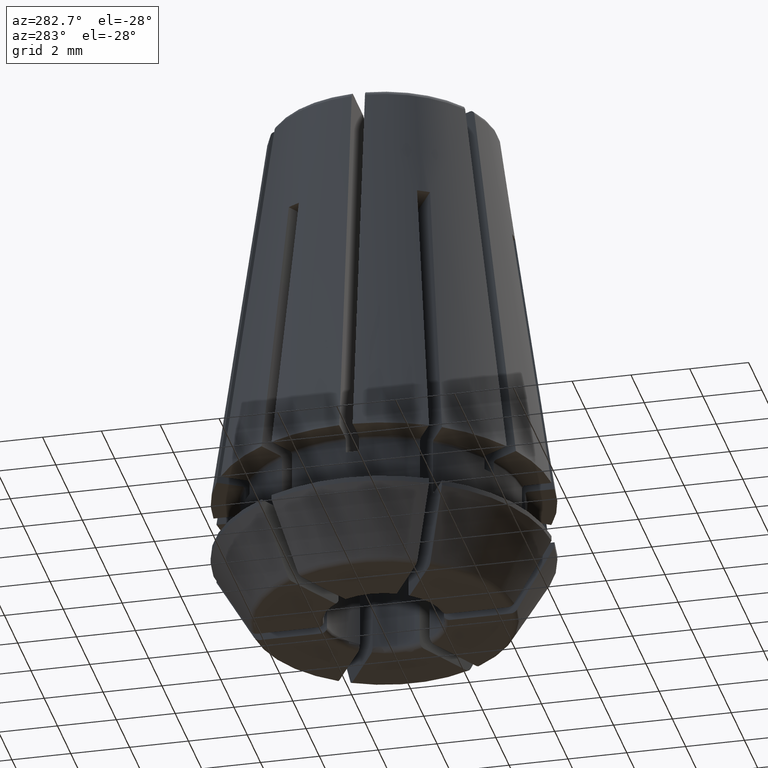
[diagram: clean part render]
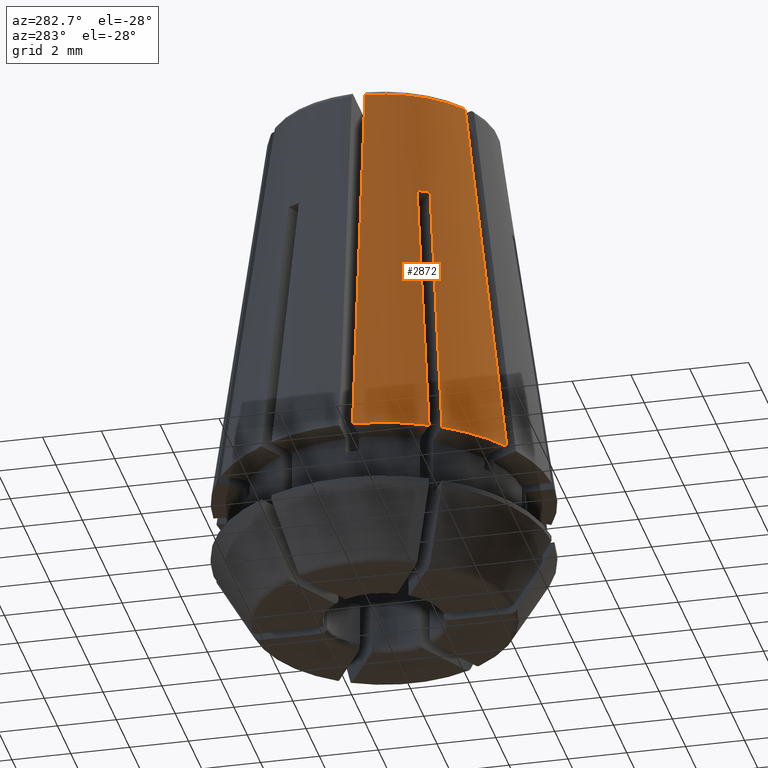
[diagram: same view with one face highlighted and labeled with its STEP entity id]
A machine part, auxiliary view. The second image highlights one B-rep face of the part: STEP entity #2872.
In plain terms, the highlighted conical surface has half-angle 8 deg.
Its self-contained STEP definition (entity closure, byte-faithful):
#60=CONICAL_SURFACE('',#3149,5.71797993230411,0.139626340159546);
#526=CIRCLE('',#3049,4.41486207032729);
#578=CIRCLE('',#3150,3.87689499770279);
#579=CIRCLE('',#3151,5.75);
#580=CIRCLE('',#3152,5.75);
#1043=ORIENTED_EDGE('',*,*,#1657,.F.);
#1044=ORIENTED_EDGE('',*,*,#1852,.F.);
#1045=ORIENTED_EDGE('',*,*,#1678,.T.);
#1046=ORIENTED_EDGE('',*,*,#1853,.T.);
#1047=ORIENTED_EDGE('',*,*,#1854,.F.);
#1048=ORIENTED_EDGE('',*,*,#1695,.T.);
#1049=ORIENTED_EDGE('',*,*,#1855,.T.);
#1050=ORIENTED_EDGE('',*,*,#1856,.T.);
#1657=EDGE_CURVE('',#2102,#2103,#2335,.T.);
#1678=EDGE_CURVE('',#2119,#2118,#2342,.T.);
#1695=EDGE_CURVE('',#2128,#2131,#526,.T.);
#1852=EDGE_CURVE('',#2119,#2102,#578,.T.);
#1853=EDGE_CURVE('',#2118,#2233,#579,.T.);
#1854=EDGE_CURVE('',#2128,#2233,#2392,.T.);
#1855=EDGE_CURVE('',#2131,#2234,#2393,.T.);
#1856=EDGE_CURVE('',#2234,#2103,#580,.T.);
#2102=VERTEX_POINT('',#4459);
#2103=VERTEX_POINT('',#4467);
#2118=VERTEX_POINT('',#4542);
#2119=VERTEX_POINT('',#4553);
#2128=VERTEX_POINT('',#4588);
#2131=VERTEX_POINT('',#4594);
#2233=VERTEX_POINT('',#5084);
#2234=VERTEX_POINT('',#5099);
#2335=B_SPLINE_CURVE_WITH_KNOTS('',3,(#4460,#4461,#4462,#4463,#4464,#4465,
#4466),.UNSPECIFIED.,.F.,.F.,(4,3,4),(2.01972124516081E-7,0.00680645793045885,
0.0134593135604364),.UNSPECIFIED.);
#2342=B_SPLINE_CURVE_WITH_KNOTS('',3,(#4543,#4544,#4545,#4546,#4547,#4548,
#4549,#4550,#4551,#4552),.UNSPECIFIED.,.F.,.F.,(4,3,3,4),(0.00551330522870601,
0.00722464384773604,0.0144492876787554,0.0189724168091454),
 .UNSPECIFIED.);
#2392=B_SPLINE_CURVE_WITH_KNOTS('',3,(#5085,#5086,#5087,#5088,#5089,#5090,
#5091),.UNSPECIFIED.,.F.,.F.,(4,3,4),(2.01970607867407E-7,0.00775094489359802,
0.00959374956587994),.UNSPECIFIED.);
#2393=B_SPLINE_CURVE_WITH_KNOTS('',3,(#5092,#5093,#5094,#5095,#5096,#5097,
#5098),.UNSPECIFIED.,.F.,.F.,(4,3,4),(2.01970607867354E-7,0.00775094489359802,
0.00959374956587994),.UNSPECIFIED.);
#2514=EDGE_LOOP('',(#1043,#1044,#1045,#1046,#1047,#1048,#1049,#1050));
#2672=FACE_BOUND('',#2514,.T.);
#2872=ADVANCED_FACE('',(#2672),#60,.T.);
#3049=AXIS2_PLACEMENT_3D('',#4595,#3508,#3509);
#3149=AXIS2_PLACEMENT_3D('',#5081,#3767,#3768);
#3150=AXIS2_PLACEMENT_3D('',#5082,#3769,#3770);
#3151=AXIS2_PLACEMENT_3D('',#5083,#3771,#3772);
#3152=AXIS2_PLACEMENT_3D('',#5100,#3773,#3774);
#3508=DIRECTION('',(0.,0.,1.));
#3509=DIRECTION('',(1.,0.,0.));
#3767=DIRECTION('',(0.,0.,-1.));
#3768=DIRECTION('',(-1.,0.,0.));
#3769=DIRECTION('',(0.,0.,1.));
#3770=DIRECTION('',(1.,0.,0.));
#3771=DIRECTION('',(0.,0.,1.));
#3772=DIRECTION('',(1.,0.,0.));
#3773=DIRECTION('',(0.,0.,1.));
#3774=DIRECTION('',(1.,0.,0.));
#4459=CARTESIAN_POINT('',(-2.13003592859738,-3.23933045027784,13.327834620192));
#4460=CARTESIAN_POINT('',(-2.13003592859739,-3.23933045027783,13.327834620192));
#4461=CARTESIAN_POINT('',(-2.28817192716575,-3.51323003430388,11.0812355018997));
#4462=CARTESIAN_POINT('',(-2.44624638924086,-3.78702303399709,8.83461905702039));
#4463=CARTESIAN_POINT('',(-2.60428967405201,-4.06076203308506,6.58799384239534));
#4464=CARTESIAN_POINT('',(-2.75877095773793,-4.32833146524755,4.39200337351099));
#4465=CARTESIAN_POINT('',(-2.91322137466781,-4.5958474346203,2.19600421884522));
#4466=CARTESIAN_POINT('',(-3.0676537856782,-4.86333221682564,1.97074145035449E-15));
#4467=CARTESIAN_POINT('',(-3.0676537856782,-4.86333221682564,-1.46367089694782E-16));
#4542=CARTESIAN_POINT('',(-5.7455961396534,-0.225,3.70477174392886E-17));
#4543=CARTESIAN_POINT('',(-3.87036042549227,-0.224999999999997,13.3278346201885));
#4544=CARTESIAN_POINT('',(-3.94988263079366,-0.224999999999997,12.7629584442003));
#4545=CARTESIAN_POINT('',(-4.02939676888761,-0.225,12.1980811324853));
#4546=CARTESIAN_POINT('',(-4.1089041676004,-0.225,11.6332028722512));
#4547=CARTESIAN_POINT('',(-4.44455523678051,-0.225,9.24849408949913));
#4548=CARTESIAN_POINT('',(-4.78009040912963,-0.225,6.86376899360275));
#4549=CARTESIAN_POINT('',(-5.11556685150051,-0.225,4.47903563840539));
#4550=CARTESIAN_POINT('',(-5.32559841903568,-0.225,2.98602682620454));
#4551=CARTESIAN_POINT('',(-5.53560579087452,-0.224999999999998,1.49301461013963));
#4552=CARTESIAN_POINT('',(-5.74559613965339,-0.224999999999998,-1.52370370580411E-15));
#4553=CARTESIAN_POINT('',(-3.87036042549202,-0.224999999999997,13.3278346201903));
#4588=CARTESIAN_POINT('',(-3.93091414398843,-2.00970671805771,9.5));
#4594=CARTESIAN_POINT('',(-3.70591414398843,-2.3994181497607,9.5));
#4595=CARTESIAN_POINT('',(0.,0.,9.5));
#5081=CARTESIAN_POINT('',(0.,0.,0.227834620192012));
#5082=CARTESIAN_POINT('',(0.,0.,13.327834620192));
#5083=CARTESIAN_POINT('',(0.,0.,0.));
#5084=CARTESIAN_POINT('',(-5.08833221682564,-2.67794235397521,0.));
#5085=CARTESIAN_POINT('',(-3.93091414398842,-2.0097067180577,9.5));
#5086=CARTESIAN_POINT('',(-4.24270387143507,-2.18971860112959,6.94162677884327));
#5087=CARTESIAN_POINT('',(-4.55440010231292,-2.3696765039323,4.38323836467077));
#5088=CARTESIAN_POINT('',(-4.86604894283689,-2.54960704590145,1.82484225554558));
#5089=CARTESIAN_POINT('',(-4.94014609008558,-2.59238705381166,1.21656194588805));
#5090=CARTESIAN_POINT('',(-5.0142403931291,-2.63516541961926,0.608281174271137));
#5091=CARTESIAN_POINT('',(-5.08833221682564,-2.67794235397521,-8.77485236100468E-16));
#5092=CARTESIAN_POINT('',(-3.70591414398842,-2.3994181497607,9.5));
#5093=CARTESIAN_POINT('',(-4.01770387143507,-2.57943003283259,6.94162677884327));
#5094=CARTESIAN_POINT('',(-4.32940010231292,-2.7593879356353,4.38323836467078));
#5095=CARTESIAN_POINT('',(-4.64104894283689,-2.93931847760445,1.82484225554558));
#5096=CARTESIAN_POINT('',(-4.71514609008558,-2.98209848551466,1.21656194588805));
#5097=CARTESIAN_POINT('',(-4.7892403931291,-3.02487685132226,0.608281174271137));
#5098=CARTESIAN_POINT('',(-4.86333221682564,-3.06765378567821,-9.0081269083926E-16));
#5099=CARTESIAN_POINT('',(-4.86333221682564,-3.0676537856782,0.));
#5100=CARTESIAN_POINT('',(0.,0.,0.));